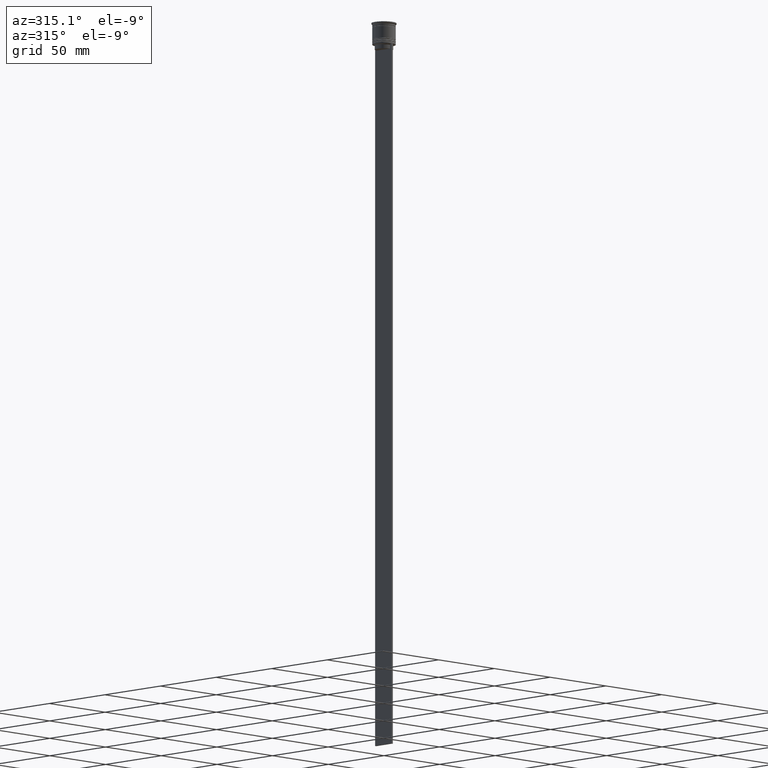
[diagram: clean part render]
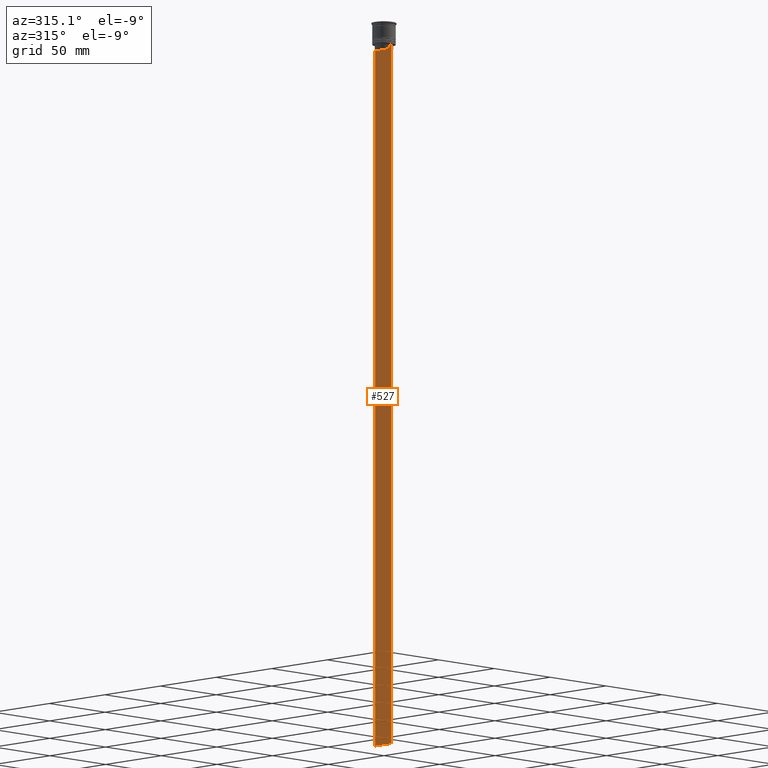
[diagram: same view with one face highlighted and labeled with its STEP entity id]
A machine part, auxiliary view. The second image highlights one B-rep face of the part: STEP entity #527.
In plain terms, the highlighted planar face has unit normal (-1, 0, 0).
Its self-contained STEP definition (entity closure, byte-faithful):
#46 = CARTESIAN_POINT ( 'NONE',  ( -0.5000000000000000000, 5.878775382679625849, -14.50000000000000000 ) ) ;
#67 = ORIENTED_EDGE ( 'NONE', *, *, #608, .F. ) ;
#70 = EDGE_LOOP ( 'NONE', ( #870, #2164, #1993, #272, #1602, #1635, #67, #1792, #456, #1110, #2336, #1117 ) ) ;
#75 = CARTESIAN_POINT ( 'NONE',  ( -0.5000000000000000000, 5.878775382679625849, -14.50000000000000000 ) ) ;
#80 = VERTEX_POINT ( 'NONE', #1194 ) ;
#81 = FACE_OUTER_BOUND ( 'NONE', #70, .T. ) ;
#147 = AXIS2_PLACEMENT_3D ( 'NONE', #1211, #649, #1765 ) ;
#160 = EDGE_CURVE ( 'NONE', #1063, #886, #2344, .T. ) ;
#179 = DIRECTION ( 'NONE',  ( 0.000000000000000000, -1.000000000000000000, 0.000000000000000000 ) ) ;
#206 = CARTESIAN_POINT ( 'NONE',  ( -0.5000000000000000000, 7.500000000000002665, 1.033296378372908997 ) ) ;
#217 = VERTEX_POINT ( 'NONE', #655 ) ;
#272 = ORIENTED_EDGE ( 'NONE', *, *, #388, .T. ) ;
#273 = PLANE ( 'NONE',  #147 ) ;
#347 = VECTOR ( 'NONE', #179, 1000.000000000000000 ) ;
#388 = EDGE_CURVE ( 'NONE', #80, #217, #1163, .T. ) ;
#405 = VERTEX_POINT ( 'NONE', #2328 ) ;
#436 = CARTESIAN_POINT ( 'NONE',  ( -0.5000000000000000000, -5.878775382679625849, 0.000000000000000000 ) ) ;
#456 = ORIENTED_EDGE ( 'NONE', *, *, #1448, .F. ) ;
#476 = CARTESIAN_POINT ( 'NONE',  ( -0.5000000000000000000, 6.213239387491007015, -14.16668843563492430 ) ) ;
#510 = VECTOR ( 'NONE', #1447, 1000.000000000000000 ) ;
#513 = CARTESIAN_POINT ( 'NONE',  ( -0.5000000000000000000, 5.878775382679625849, -17.00000000000000000 ) ) ;
#527 = ADVANCED_FACE ( 'NONE', ( #81 ), #273, .T. ) ;
#608 = EDGE_CURVE ( 'NONE', #886, #833, #688, .T. ) ;
#617 = LINE ( 'NONE', #436, #819 ) ;
#619 = DIRECTION ( 'NONE',  ( 0.000000000000000000, -1.000000000000000000, 0.000000000000000000 ) ) ;
#632 = DIRECTION ( 'NONE',  ( 0.000000000000000000, 0.000000000000000000, -1.000000000000000000 ) ) ;
#649 = DIRECTION ( 'NONE',  ( -1.000000000000000000, 0.000000000000000000, 0.000000000000000000 ) ) ;
#654 = LINE ( 'NONE', #1809, #2308 ) ;
#655 = CARTESIAN_POINT ( 'NONE',  ( -0.5000000000000000000, 7.500000000000002665, -464.0000000000000000 ) ) ;
#662 = VECTOR ( 'NONE', #1882, 1000.000000000000000 ) ;
#674 = CARTESIAN_POINT ( 'NONE',  ( -0.5000000000000000000, -6.380438856379706536, -14.00000000000000178 ) ) ;
#688 = LINE ( 'NONE', #1461, #1592 ) ;
#716 = VERTEX_POINT ( 'NONE', #513 ) ;
#718 = EDGE_CURVE ( 'NONE', #80, #2209, #2019, .T. ) ;
#740 = VECTOR ( 'NONE', #1694, 1000.000000000000000 ) ;
#768 = VERTEX_POINT ( 'NONE', #1131 ) ;
#805 = EDGE_CURVE ( 'NONE', #2209, #768, #2106, .T. ) ;
#819 = VECTOR ( 'NONE', #1380, 1000.000000000000000 ) ;
#833 = VERTEX_POINT ( 'NONE', #2120 ) ;
#864 = CARTESIAN_POINT ( 'NONE',  ( -0.5000000000000000000, 6.046020074006152711, -14.33335695351623151 ) ) ;
#870 = ORIENTED_EDGE ( 'NONE', *, *, #1976, .F. ) ;
#886 = VERTEX_POINT ( 'NONE', #1690 ) ;
#925 = CARTESIAN_POINT ( 'NONE',  ( -0.5000000000000000000, 5.899999999999998579, -17.00000000000000000 ) ) ;
#971 = DIRECTION ( 'NONE',  ( 0.000000000000000000, 0.000000000000000000, -1.000000000000000000 ) ) ;
#1040 = CARTESIAN_POINT ( 'NONE',  ( -0.5000000000000000000, -6.046019991840948293, -14.33335703538585726 ) ) ;
#1059 = CARTESIAN_POINT ( 'NONE',  ( -0.5000000000000000000, -7.499999999999999112, -14.00000000000000178 ) ) ;
#1063 = VERTEX_POINT ( 'NONE', #674 ) ;
#1110 = ORIENTED_EDGE ( 'NONE', *, *, #2050, .F. ) ;
#1115 = CARTESIAN_POINT ( 'NONE',  ( -0.5000000000000000000, 5.878775382679625849, 0.000000000000000000 ) ) ;
#1117 = ORIENTED_EDGE ( 'NONE', *, *, #2180, .F. ) ;
#1131 = CARTESIAN_POINT ( 'NONE',  ( -0.5000000000000000000, 6.380438856379706536, -14.00000000000000178 ) ) ;
#1163 = LINE ( 'NONE', #206, #1710 ) ;
#1170 = CARTESIAN_POINT ( 'NONE',  ( -0.5000000000000000000, -7.499999999999999112, -14.00000000000000178 ) ) ;
#1194 = CARTESIAN_POINT ( 'NONE',  ( -0.5000000000000000000, 7.500000000000002665, -14.00000000000000178 ) ) ;
#1208 = VERTEX_POINT ( 'NONE', #2293 ) ;
#1211 = CARTESIAN_POINT ( 'NONE',  ( -0.5000000000000000000, -7.499999999999999112, 1.033296378372908997 ) ) ;
#1268 = VECTOR ( 'NONE', #619, 1000.000000000000000 ) ;
#1318 = LINE ( 'NONE', #925, #740 ) ;
#1328 = LINE ( 'NONE', #1907, #2392 ) ;
#1380 = DIRECTION ( 'NONE',  ( -0.000000000000000000, -0.000000000000000000, 1.000000000000000000 ) ) ;
#1417 = CARTESIAN_POINT ( 'NONE',  ( -0.5000000000000000000, -5.878775382679625849, -14.50000000000000000 ) ) ;
#1440 = CARTESIAN_POINT ( 'NONE',  ( -0.5000000000000000000, 7.383088784512886527, -14.00000000000000178 ) ) ;
#1447 = DIRECTION ( 'NONE',  ( 0.000000000000000000, -1.000000000000000000, 0.000000000000000000 ) ) ;
#1448 = EDGE_CURVE ( 'NONE', #405, #1063, #1473, .T. ) ;
#1461 = CARTESIAN_POINT ( 'NONE',  ( -0.5000000000000000000, -7.499999999999999112, -14.00000000000000178 ) ) ;
#1473 = B_SPLINE_CURVE_WITH_KNOTS ( 'NONE', 3,
 ( #1417, #1040, #1858, #2422 ),
 .UNSPECIFIED., .F., .F.,
 ( 4, 4 ),
 ( 0.02765270321082434479, 0.02836198271238431559 ),
 .UNSPECIFIED. ) ;
#1490 = LINE ( 'NONE', #1115, #662 ) ;
#1497 = B_SPLINE_CURVE_WITH_KNOTS ( 'NONE', 3,
 ( #1821, #476, #864, #75 ),
 .UNSPECIFIED., .F., .F.,
 ( 4, 4 ),
 ( 0.01087727669788152163, 0.01158556069794289788 ),
 .UNSPECIFIED. ) ;
#1592 = VECTOR ( 'NONE', #2452, 1000.000000000000000 ) ;
#1598 = VERTEX_POINT ( 'NONE', #1706 ) ;
#1602 = ORIENTED_EDGE ( 'NONE', *, *, #1728, .F. ) ;
#1635 = ORIENTED_EDGE ( 'NONE', *, *, #2042, .F. ) ;
#1653 = EDGE_CURVE ( 'NONE', #716, #1598, #1318, .T. ) ;
#1690 = CARTESIAN_POINT ( 'NONE',  ( -0.5000000000000000000, -7.383088784512886527, -14.00000000000000178 ) ) ;
#1694 = DIRECTION ( 'NONE',  ( 0.000000000000000000, -1.000000000000000000, 0.000000000000000000 ) ) ;
#1706 = CARTESIAN_POINT ( 'NONE',  ( -0.5000000000000000000, -5.878775382679625849, -17.00000000000000000 ) ) ;
#1710 = VECTOR ( 'NONE', #971, 1000.000000000000000 ) ;
#1728 = EDGE_CURVE ( 'NONE', #1208, #217, #1328, .T. ) ;
#1765 = DIRECTION ( 'NONE',  ( 0.000000000000000000, 0.000000000000000000, 1.000000000000000000 ) ) ;
#1792 = ORIENTED_EDGE ( 'NONE', *, *, #160, .F. ) ;
#1809 = CARTESIAN_POINT ( 'NONE',  ( -0.5000000000000000000, -7.499999999999999112, 1.033296378372908997 ) ) ;
#1821 = CARTESIAN_POINT ( 'NONE',  ( -0.5000000000000000000, 6.380438856379706536, -14.00000000000000178 ) ) ;
#1858 = CARTESIAN_POINT ( 'NONE',  ( -0.5000000000000000000, -6.213239311785844876, -14.16668851110870087 ) ) ;
#1882 = DIRECTION ( 'NONE',  ( 0.000000000000000000, 0.000000000000000000, -1.000000000000000000 ) ) ;
#1907 = CARTESIAN_POINT ( 'NONE',  ( -0.5000000000000000000, -7.499999999999999112, -464.0000000000000000 ) ) ;
#1976 = EDGE_CURVE ( 'NONE', #768, #2018, #1497, .T. ) ;
#1993 = ORIENTED_EDGE ( 'NONE', *, *, #718, .F. ) ;
#2018 = VERTEX_POINT ( 'NONE', #46 ) ;
#2019 = LINE ( 'NONE', #1059, #510 ) ;
#2042 = EDGE_CURVE ( 'NONE', #833, #1208, #654, .T. ) ;
#2050 = EDGE_CURVE ( 'NONE', #1598, #405, #617, .T. ) ;
#2106 = LINE ( 'NONE', #1170, #347 ) ;
#2120 = CARTESIAN_POINT ( 'NONE',  ( -0.5000000000000000000, -7.499999999999999112, -14.00000000000000178 ) ) ;
#2136 = DIRECTION ( 'NONE',  ( 0.000000000000000000, 1.000000000000000000, 0.000000000000000000 ) ) ;
#2154 = CARTESIAN_POINT ( 'NONE',  ( -0.5000000000000000000, -7.499999999999999112, -14.00000000000000178 ) ) ;
#2164 = ORIENTED_EDGE ( 'NONE', *, *, #805, .F. ) ;
#2180 = EDGE_CURVE ( 'NONE', #2018, #716, #1490, .T. ) ;
#2209 = VERTEX_POINT ( 'NONE', #1440 ) ;
#2293 = CARTESIAN_POINT ( 'NONE',  ( -0.5000000000000000000, -7.499999999999999112, -464.0000000000000000 ) ) ;
#2308 = VECTOR ( 'NONE', #632, 1000.000000000000000 ) ;
#2328 = CARTESIAN_POINT ( 'NONE',  ( -0.5000000000000000000, -5.878775382679625849, -14.50000000000000000 ) ) ;
#2336 = ORIENTED_EDGE ( 'NONE', *, *, #1653, .F. ) ;
#2344 = LINE ( 'NONE', #2154, #1268 ) ;
#2392 = VECTOR ( 'NONE', #2136, 1000.000000000000000 ) ;
#2422 = CARTESIAN_POINT ( 'NONE',  ( -0.5000000000000000000, -6.380438856379706536, -14.00000000000000178 ) ) ;
#2452 = DIRECTION ( 'NONE',  ( 0.000000000000000000, -1.000000000000000000, 0.000000000000000000 ) ) ;